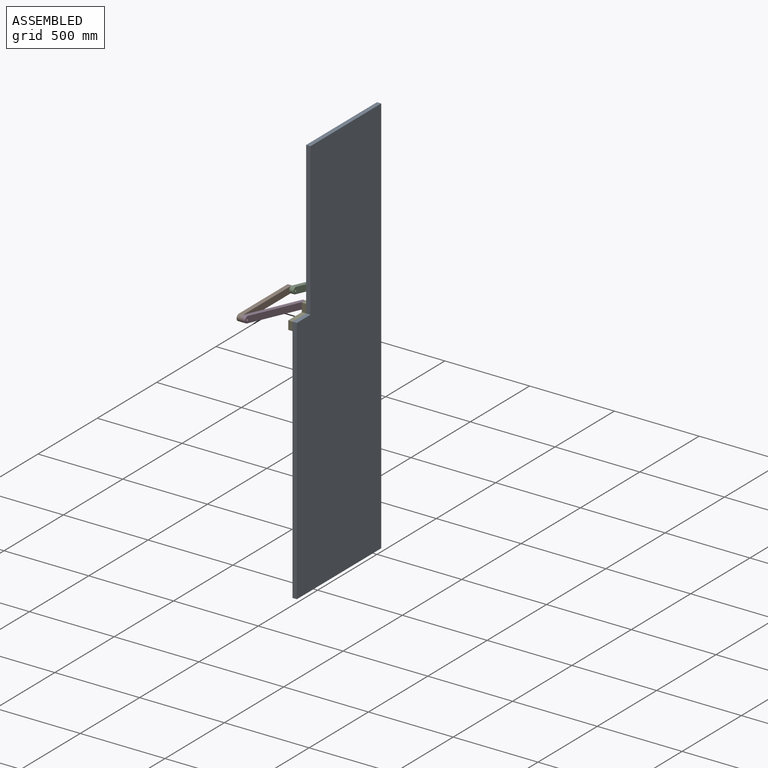
[diagram: assembled view]
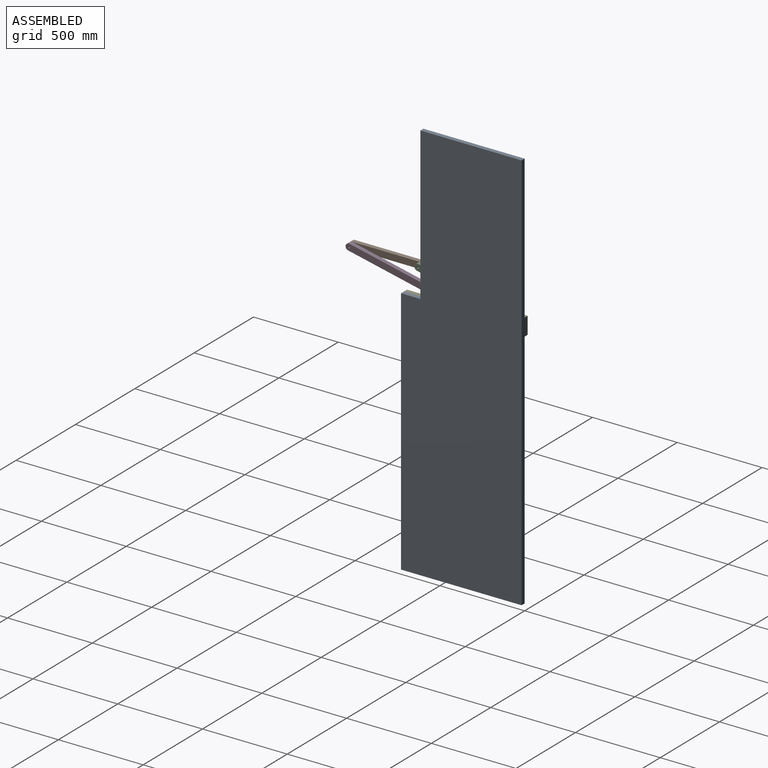
[diagram: assembled view, second angle]
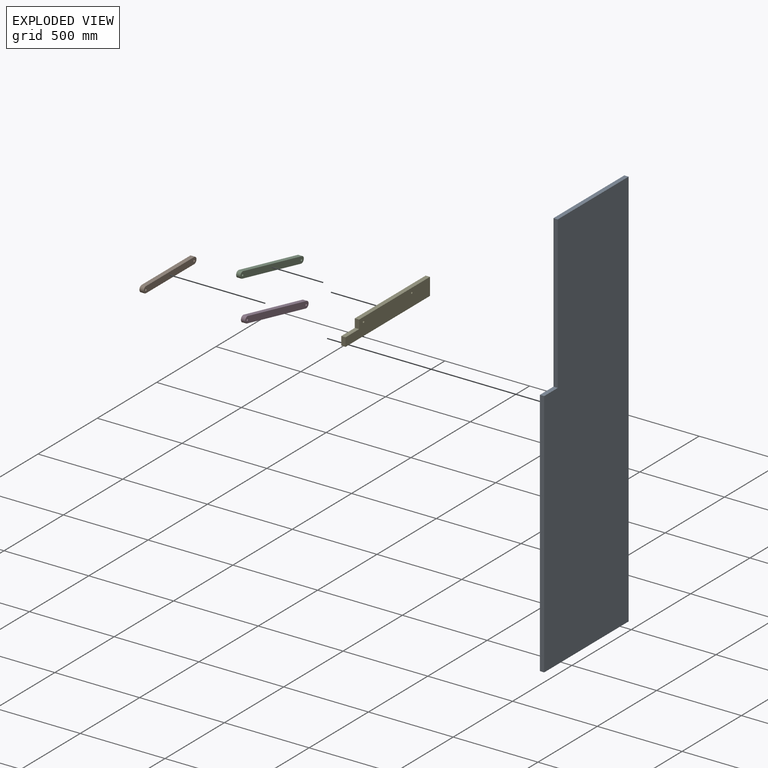
[diagram: exploded view]
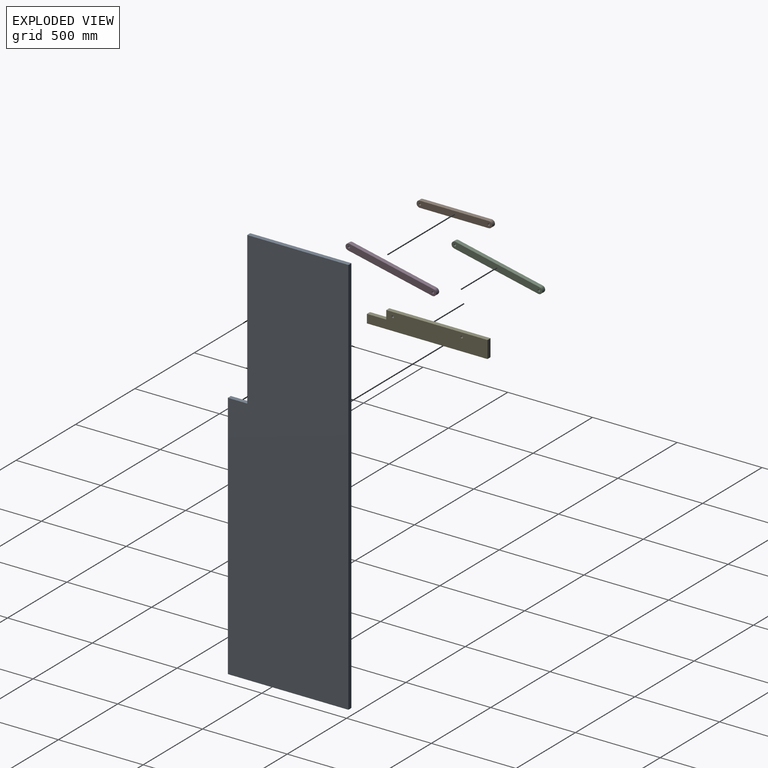
[diagram: exploded view, second angle]
ASSEMBLY  parts=5 mates=5
PART A: 8 faces, bbox 25.4x711.2x2371.7 mm
  f0: plane 898.53x25.4mm, normal (0,-1,0), area 22822.5mm2, adj f1,f5,f6,f7
  f1: plane 114.3x25.4mm, normal (0,0,1), area 2903.2mm2, adj f0,f2,f6,f7
  f2: plane 1473.2x25.4mm, normal (0,-1,0), area 37419.3mm2, adj f1,f3,f6,f7
  f3: plane 711.2x25.4mm, normal (0,0,-1), area 18064.5mm2, adj f2,f4,f6,f7
  f4: plane 2371.73x25.4mm, normal (0,1,0), area 60241.8mm2, adj f3,f5,f6,f7
  f5: plane 596.9x25.4mm, normal (0,0,1), area 15161.3mm2, adj f0,f4,f6,f7
  f6: plane 2371.73x711.2mm, normal (1,0,0), area 1584069.4mm2, adj f0,f1,f2,f3,f4,f5
  f7: plane 2371.73x711.2mm, normal (-1,0,0), area 1584069.4mm2, adj f0,f1,f2,f3,f4,f5
PART B: 8 faces, bbox 25.4x444.5x38.1 mm
  f0: cylinder r=19.05mm len=38.1mm, axis (-1,0,0), area 1520.1mm2, adj f1,f3,f6,f7
  f1: plane 406.4x25.4mm, normal (0,0,-1), area 10322.6mm2, adj f0,f2,f6,f7
  f2: cylinder r=19.05mm len=38.1mm, axis (-1,0,0), area 1520.1mm2, adj f1,f3,f6,f7
  f3: plane 406.4x25.4mm, normal (0,0,1), area 10322.6mm2, adj f0,f2,f6,f7
  f4: cylinder r=6.35mm len=25.4mm, axis (-1,0,0), area 1013.4mm2, adj f6,f7
  f5: cylinder r=6.35mm len=25.4mm, axis (-1,0,0), area 1013.4mm2, adj f6,f7
  f6: plane 444.5x38.1mm, normal (1,0,0), area 16370.6mm2, adj f0,f1,f2,f3,f4,f5
  f7: plane 444.5x38.1mm, normal (-1,0,0), area 16370.6mm2, adj f0,f1,f2,f3,f4,f5
PART C: 8 faces, bbox 25.4x38.1x546.1 mm
  f0: plane 508x25.4mm, normal (0,-1,0), area 12903.2mm2, adj f1,f4,f6,f7
  f1: cylinder r=19.05mm len=38.1mm, axis (-1,0,0), area 1520.1mm2, adj f0,f2,f6,f7
  f2: plane 508x25.4mm, normal (0,1,0), area 12903.2mm2, adj f1,f4,f6,f7
  f3: cylinder r=6.35mm len=25.4mm, axis (-1,0,0), area 1013.4mm2, adj f6,f7
  f4: cylinder r=19.05mm len=38.1mm, axis (-1,0,0), area 1520.1mm2, adj f0,f2,f6,f7
  f5: cylinder r=6.35mm len=25.4mm, axis (-1,0,0), area 1013.4mm2, adj f6,f7
  f6: plane 546.1x38.1mm, normal (1,0,0), area 20241.5mm2, adj f0,f1,f2,f3,f4,f5
  f7: plane 546.1x38.1mm, normal (-1,0,0), area 20241.5mm2, adj f0,f1,f2,f3,f4,f5
PART D: same geometry as C
PART E: 10 faces, bbox 25.4x711.2x101.6 mm
  f0: plane 50.8x25.4mm, normal (0,-1,0), area 1290.3mm2, adj f1,f6,f8,f9
  f1: plane 114.3x25.4mm, normal (0,0,1), area 2903.2mm2, adj f0,f2,f8,f9
  f2: plane 50.8x25.4mm, normal (0,-1,0), area 1290.3mm2, adj f1,f3,f8,f9
  f3: plane 711.2x25.4mm, normal (0,0,-1), area 18064.5mm2, adj f2,f4,f8,f9
  f4: plane 101.6x25.4mm, normal (0,1,0), area 2580.6mm2, adj f3,f6,f8,f9
  f5: cylinder r=6.35mm len=25.4mm, axis (1,0,0), area 1013.4mm2, adj f8,f9
  f6: plane 596.9x25.4mm, normal (0,0,1), area 15161.3mm2, adj f0,f4,f8,f9
  f7: cylinder r=6.35mm len=25.4mm, axis (1,0,0), area 1013.4mm2, adj f8,f9
  f8: plane 711.2x101.6mm, normal (-1,0,0), area 66198.1mm2, adj f0,f1,f2,f3,f4,f5,f6,f7
  f9: plane 711.2x101.6mm, normal (1,0,0), area 66198.1mm2, adj f0,f1,f2,f3,f4,f5,f6,f7
PLACE A t=(0,-711.2,0)mm
PLACE B t=(-76.2,-648.48,134.79)mm
PLACE C rot(axis=(1,0,0),77.6deg) t=(-50.8,-152.4,25.4)mm
PLACE D rot(axis=(1,0,0),77.6deg) t=(-50.8,-558.8,25.4)mm
PLACE E at identity fixed
MATE revolute E.f5 <-> C.f1  axis (-1,0,0) through (-25.4,-152.4,25.4)mm
MATE revolute D.f1 <-> E.f7  axis (1,0,0) through (-25.4,-558.8,25.4)mm
MATE revolute D.f3 <-> B.f4  axis (-1,0,0) through (-50.8,-1054.88,134.79)mm
MATE parallel E.f9 <-> A.f7  axis (1,0,0) through (0,-711.2,0)mm
MATE revolute B.f5 <-> C.f3  axis (1,0,0) through (-50.8,-648.48,134.79)mm
